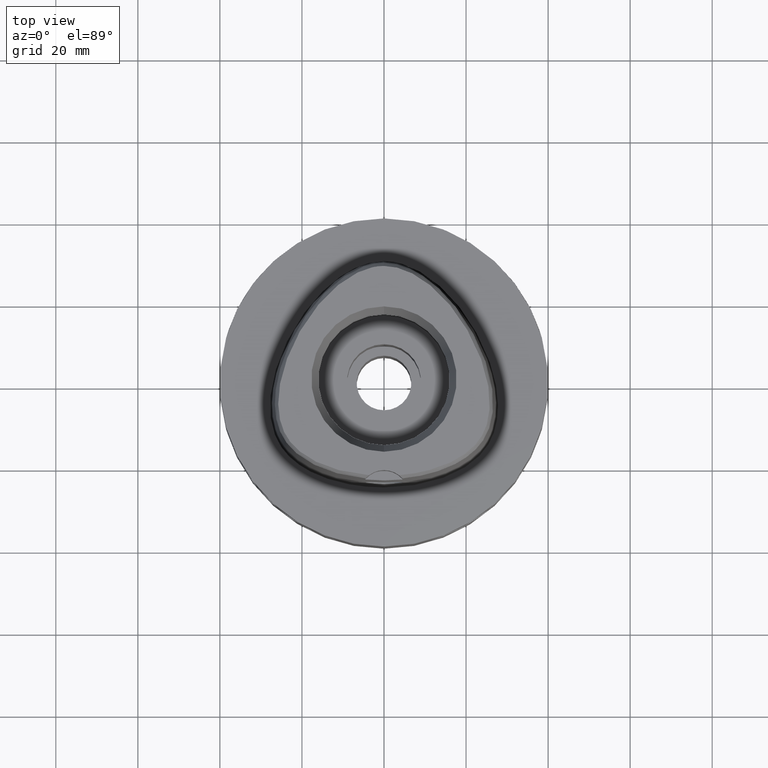
[diagram: clean part render]
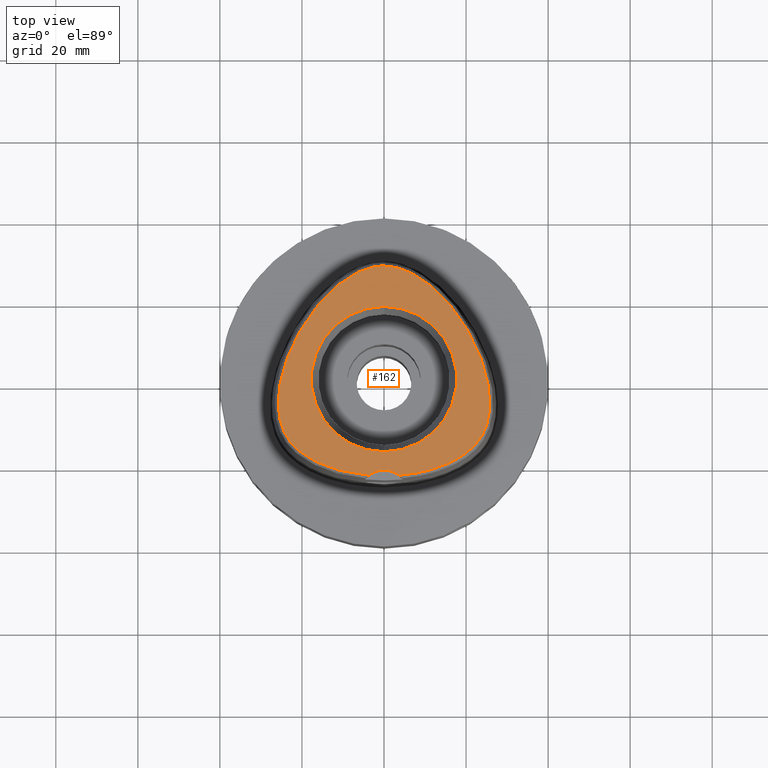
[diagram: same view with one face highlighted and labeled with its STEP entity id]
A machine part, top view. The second image highlights one B-rep face of the part: STEP entity #162.
In plain terms, the highlighted planar face has unit normal (0, 0, 1).
Its self-contained STEP definition (entity closure, byte-faithful):
#4 = CARTESIAN_POINT ( 'NONE',  ( 25.78811069501304942, -5.218135357747975434, 48.00000000000606803 ) ) ;
#32 = CARTESIAN_POINT ( 'NONE',  ( 23.81116373424266186, 4.548397580874504520, 48.00000000000783729 ) ) ;
#93 = CARTESIAN_POINT ( 'NONE',  ( -4.489954052492726611, 26.80204639255456200, 48.00000000000842704 ) ) ;
#122 = CARTESIAN_POINT ( 'NONE',  ( -24.34597371488892747, 2.947766319392898016, 48.00000000000918732 ) ) ;
#135 = CARTESIAN_POINT ( 'NONE',  ( 0.0000000000000000000, 0.0000000000000000000, 48.00000000000000000 ) ) ;
#141 = CARTESIAN_POINT ( 'NONE',  ( -22.45665628223481392, 7.877471279647881630, 48.00000000000441247 ) ) ;
#147 = CARTESIAN_POINT ( 'NONE',  ( 10.66892483387531598, -22.30459704282527511, 48.00000000000993339 ) ) ;
#162 = ADVANCED_FACE ( 'NONE', ( #3834, #1474 ), #3036, .T. ) ;
#171 = CARTESIAN_POINT ( 'NONE',  ( -23.26140416529554500, -14.77902311538010771, 48.00000000000509459 ) ) ;
#200 = CARTESIAN_POINT ( 'NONE',  ( -16.58720414441635072, 17.44590650687523592, 47.99999999999558753 ) ) ;
#237 = CARTESIAN_POINT ( 'NONE',  ( 0.0000000000000000000, 0.0000000000000000000, 48.00000000000000000 ) ) ;
#341 = VERTEX_POINT ( 'NONE', #2251 ) ;
#348 = CARTESIAN_POINT ( 'NONE',  ( 0.6937438505403579203, 27.57019898701109994, 48.00000000000366640 ) ) ;
#350 = DIRECTION ( 'NONE',  ( 0.0000000000000000000, 0.0000000000000000000, 1.000000000000000000 ) ) ;
#375 = CARTESIAN_POINT ( 'NONE',  ( 23.18188527997767068, 6.195157684106793461, 48.00000000000271427 ) ) ;
#422 = CARTESIAN_POINT ( 'NONE',  ( 25.74155027847749011, -7.352132003090066981, 48.00000000000758860 ) ) ;
#443 = CARTESIAN_POINT ( 'NONE',  ( 23.26225374360371845, -14.77782433121393701, 48.00000000000760281 ) ) ;
#487 = CARTESIAN_POINT ( 'NONE',  ( -6.203520479231302787, 26.11107304852786726, 48.00000000000571987 ) ) ;
#517 = CARTESIAN_POINT ( 'NONE',  ( -19.78446217835176668, 12.89029827906403369, 48.00000000000331113 ) ) ;
#540 = CARTESIAN_POINT ( 'NONE',  ( -25.64644810598788283, -8.319642749356461309, 48.00000000000968470 ) ) ;
#547 = CARTESIAN_POINT ( 'NONE',  ( 9.079666835763868349, -22.67647771863519424, 48.00000000001199396 ) ) ;
#561 = CARTESIAN_POINT ( 'NONE',  ( -18.76020591298052409, 14.48413071376458383, 48.00000000000543565 ) ) ;
#566 = VERTEX_POINT ( 'NONE', #3429 ) ;
#587 = CARTESIAN_POINT ( 'NONE',  ( -18.95547945645238741, -18.80500687501653090, 48.00000000000466116 ) ) ;
#614 = CARTESIAN_POINT ( 'NONE',  ( -0.6921675427512234968, 27.57027402749654499, 48.00000000000503064 ) ) ;
#703 = CARTESIAN_POINT ( 'NONE',  ( 25.64658655008214794, -8.318518488027693891, 48.00000000000591172 ) ) ;
#713 = CARTESIAN_POINT ( 'NONE',  ( -0.2321695341564309067, 27.58331912251146179, 48.00000000000255795 ) ) ;
#722 = CARTESIAN_POINT ( 'NONE',  ( 24.00708073425625599, -13.59389763843181420, 48.00000000000576250 ) ) ;
#738 = AXIS2_PLACEMENT_3D ( 'NONE', #135, #835, #886 ) ;
#752 = CARTESIAN_POINT ( 'NONE',  ( 2.897393261679963583, 27.25600202852406184, 48.00000000000409983 ) ) ;
#779 = CARTESIAN_POINT ( 'NONE',  ( 5.331982176208823532, 26.48833275828247835, 48.00000000000274980 ) ) ;
#801 = CARTESIAN_POINT ( 'NONE',  ( 12.14811716929451357, 22.13187320258422019, 47.99999999999896261 ) ) ;
#835 = DIRECTION ( 'NONE',  ( 0.0000000000000000000, 0.0000000000000000000, 1.000000000000000000 ) ) ;
#886 = DIRECTION ( 'NONE',  ( 0.0000000000000000000, 1.000000000000000000, 0.0000000000000000000 ) ) ;
#923 = CARTESIAN_POINT ( 'NONE',  ( -21.17991838301641749, -17.09989881138010048, 48.00000000000500933 ) ) ;
#952 = CARTESIAN_POINT ( 'NONE',  ( -24.78798701905811441, 1.406367702424668131, 48.00000000000323297 ) ) ;
#965 = ORIENTED_EDGE ( 'NONE', *, *, #4963, .F. ) ;
#975 = CARTESIAN_POINT ( 'NONE',  ( -17.07251346402492231, -19.90534499102769672, 48.00000000000147082 ) ) ;
#976 = B_SPLINE_CURVE_WITH_KNOTS ( 'NONE', 3,
 ( #1966, #1913, #348, #3440, #4299, #752, #3467, #5013, #779, #2331, #5043, #3892, #2356, #1531, #2379, #801, #4705, #1988, #4725, #1177, #1606, #3832, #4680, #3519, #2679, #4324, #375, #32, #1883, #1502, #1945, #3494, #3066, #3940, #4, #3145, #422, #703, #3171, #1125, #1223, #5070, #4240, #1555, #722, #2302, #443, #3590, #2087, #4039, #1345, #1316, #2016, #1631, #3617, #3992, #4376, #4397, #1727, #2875, #147, #547, #1249, #1294, #3257, #3966, #4445 ),
 .UNSPECIFIED., .F., .F.,
 ( 4, 1, 1, 1, 1, 1, 1, 1, 1, 1, 1, 1, 1, 1, 1, 1, 1, 1, 1, 1, 1, 1, 1, 1, 1, 1, 1, 1, 1, 1, 1, 1, 1, 1, 1, 1, 1, 1, 1, 1, 1, 1, 1, 1, 1, 1, 1, 1, 1, 1, 1, 1, 1, 1, 1, 1, 1, 1, 1, 1, 1, 1, 1, 1, 4 ),
 ( 0.0000000000000000000, 0.01585579672639991777, 0.03171159345210006197, 0.04756739017779998413, 0.06342318690360004840, 0.07927898362929997056, 0.09513478035499989272, 0.1109905770807000369, 0.1268463738063999591, 0.1427021705320999923, 0.1585579672578999455, 0.1744137639835999787, 0.1902695607093000119, 0.2061253574349999340, 0.2219811541607000782, 0.2378369508864000004, 0.2536927476120999225, 0.2695485443380000179, 0.2854043410636999401, 0.3012601377893999732, 0.3171159345151000064, 0.3329717312407999286, 0.3488275279665000728, 0.3646833246923000260, 0.3805391214179999482, 0.3963949181436999813, 0.4122507148694000145, 0.4281065115951000477, 0.4439623083207999699, 0.4598181050465000030, 0.4756739017723000673, 0.4915296984979999895, 0.5073854952237000226, 0.5232412919494000558, 0.5390970886750999780, 0.5549528854007999001, 0.5708086821265999644, 0.5866644788522999976, 0.6025202755780000308, 0.6183760723036999529, 0.6342318690293999861, 0.6500876657551999394, 0.6659434624808999725, 0.6817992592067000368, 0.6976550559323999590, 0.7135108526580999921, 0.7293666493838000253, 0.7452224461095000585, 0.7610782428351999807, 0.7769340395610000449, 0.7927898362866999671, 0.8086456330124000003, 0.8245014297380999224, 0.8403572264637999556, 0.8562130231894999888, 0.8720688199152000220, 0.8879246166409999752, 0.9037804133667199924, 0.9196362100924300176, 0.9354920068181400428, 0.9513478035438499569, 0.9672036002695799661, 0.9830593969952899913, 0.9989151937210170029, 1.000000000000000000 ),
 .UNSPECIFIED. ) ;
#999 = CARTESIAN_POINT ( 'NONE',  ( -13.53666233734578128, -21.43297585322376264, 48.00000000000152767 ) ) ;
#1050 = CARTESIAN_POINT ( 'NONE',  ( -1.406513445700645404, 27.50987728443240599, 48.00000000001251266 ) ) ;
#1063 = VERTEX_POINT ( 'NONE', #1784 ) ;
#1064 = CARTESIAN_POINT ( 'NONE',  ( 0.0000000000000000000, 0.0000000000000000000, 48.00000000000000000 ) ) ;
#1109 = CIRCLE ( 'NONE', #3980, 6.000000000000002665 ) ;
#1125 = CARTESIAN_POINT ( 'NONE',  ( 25.33687583872389126, -10.06999584063758668, 48.00000000000442668 ) ) ;
#1177 = CARTESIAN_POINT ( 'NONE',  ( 16.58774972841310102, 17.44522137221896330, 48.00000000000697753 ) ) ;
#1223 = CARTESIAN_POINT ( 'NONE',  ( 25.12949508357967332, -10.86427360166815603, 47.99999999999989342 ) ) ;
#1249 = CARTESIAN_POINT ( 'NONE',  ( 7.396182376302762762, -22.99483633013832673, 48.00000000000645883 ) ) ;
#1264 = DIRECTION ( 'NONE',  ( 0.0000000000000000000, 0.0000000000000000000, 1.000000000000000000 ) ) ;
#1290 = CARTESIAN_POINT ( 'NONE',  ( -2.895995683504349660, 27.25632069045063588, 48.00000000000500933 ) ) ;
#1294 = CARTESIAN_POINT ( 'NONE',  ( 5.628119991152977342, -23.25222728397455541, 48.00000000000321876 ) ) ;
#1309 = CARTESIAN_POINT ( 'NONE',  ( -5.621443921965807888, -23.25305008129186746, 48.00000000001158895 ) ) ;
#1316 = CARTESIAN_POINT ( 'NONE',  ( 20.51253914625041119, -17.67119446946212946, 47.99999999999969447 ) ) ;
#1324 = EDGE_LOOP ( 'NONE', ( #965, #3404, #2544 ) ) ;
#1338 = CARTESIAN_POINT ( 'NONE',  ( -7.390055773640864523, -22.99586658607940137, 48.00000000000366640 ) ) ;
#1345 = CARTESIAN_POINT ( 'NONE',  ( 21.18145661121623036, -17.09850743469334589, 47.99999999999829470 ) ) ;
#1368 = CARTESIAN_POINT ( 'NONE',  ( -15.47246034441344875, 18.77924032487164752, 48.00000000000600409 ) ) ;
#1386 = CARTESIAN_POINT ( 'NONE',  ( -14.35357212122946002, 20.00684525407174519, 47.99999999999990052 ) ) ;
#1416 = VERTEX_POINT ( 'NONE', #5032 ) ;
#1474 = FACE_BOUND ( 'NONE', #3150, .T. ) ;
#1502 = CARTESIAN_POINT ( 'NONE',  ( 24.78780591084375828, 1.407047860335388423, 48.00000000000070344 ) ) ;
#1531 = CARTESIAN_POINT ( 'NONE',  ( 10.03889926273921418, 23.82643791975515768, 48.00000000000915890 ) ) ;
#1555 = CARTESIAN_POINT ( 'NONE',  ( 24.32795549673378588, -12.97211154200293137, 48.00000000000951417 ) ) ;
#1606 = CARTESIAN_POINT ( 'NONE',  ( 17.68852893097899681, 16.00958332232139725, 48.00000000000285638 ) ) ;
#1613 = EDGE_CURVE ( 'NONE', #2856, #566, #1109, .T. ) ;
#1615 = ORIENTED_EDGE ( 'NONE', *, *, #4340, .F. ) ;
#1631 = CARTESIAN_POINT ( 'NONE',  ( 18.95779336837018292, -18.80349047535291618, 48.00000000000338218 ) ) ;
#1647 = EDGE_CURVE ( 'NONE', #566, #341, #3871, .T. ) ;
#1676 = CARTESIAN_POINT ( 'NONE',  ( -3.678923649486310676, 27.05630543830159240, 47.99999999999815969 ) ) ;
#1701 = CARTESIAN_POINT ( 'NONE',  ( -19.77143225161697160, -18.24138896763881590, 48.00000000000783729 ) ) ;
#1722 = CARTESIAN_POINT ( 'NONE',  ( -21.64189922317465786, 9.570126786844825872, 48.00000000000295586 ) ) ;
#1723 = AXIS2_PLACEMENT_3D ( 'NONE', #237, #2602, #4070 ) ;
#1727 = CARTESIAN_POINT ( 'NONE',  ( 13.54089058450629324, -21.43147460488541967, 48.00000000000918021 ) ) ;
#1750 = CARTESIAN_POINT ( 'NONE',  ( -25.78814000082077484, -5.219183132163657923, 48.00000000000435563 ) ) ;
#1777 = CARTESIAN_POINT ( 'NONE',  ( -12.14717624329316870, 22.13270362300422534, 48.00000000000713385 ) ) ;
#1784 = CARTESIAN_POINT ( 'NONE',  ( 0.0000000000000000000, 17.71487483155999954, 48.00000000000000000 ) ) ;
#1883 = CARTESIAN_POINT ( 'NONE',  ( 24.34579675531529830, 2.948329282943732199, 48.00000000001313083 ) ) ;
#1905 = ORIENTED_EDGE ( 'NONE', *, *, #2603, .F. ) ;
#1913 = CARTESIAN_POINT ( 'NONE',  ( 0.2325907962420791231, 27.58331912251588491, 48.00000000000326139 ) ) ;
#1945 = CARTESIAN_POINT ( 'NONE',  ( 25.14129527416941912, -0.06715740301629286035, 48.00000000000078160 ) ) ;
#1966 = CARTESIAN_POINT ( 'NONE',  ( -2.553408000957999972E-11, 27.58331912251000162, 48.00000000000000000 ) ) ;
#1988 = CARTESIAN_POINT ( 'NONE',  ( 14.35433142683577401, 20.00604447574545475, 48.00000000000303402 ) ) ;
#2008 = DIRECTION ( 'NONE',  ( 0.6087555377260667200, 0.7933578607966567109, 0.0000000000000000000 ) ) ;
#2016 = CARTESIAN_POINT ( 'NONE',  ( 19.77345709183110856, -18.23990985540091714, 47.99999999999798916 ) ) ;
#2052 = CARTESIAN_POINT ( 'NONE',  ( -11.07816725942211633, 23.03133635782418409, 48.00000000000149925 ) ) ;
#2077 = CARTESIAN_POINT ( 'NONE',  ( -3.652529789304999941, -23.43985019791999846, 48.00000000000000000 ) ) ;
#2087 = CARTESIAN_POINT ( 'NONE',  ( 22.33100613406347534, -15.94420923685188640, 48.00000000000496669 ) ) ;
#2102 = CARTESIAN_POINT ( 'NONE',  ( -25.72853642076912450, -4.045150056830411067, 48.00000000000228795 ) ) ;
#2127 = CARTESIAN_POINT ( 'NONE',  ( -15.99341638177358504, -20.43562447748537281, 48.00000000000518696 ) ) ;
#2158 = CARTESIAN_POINT ( 'NONE',  ( -7.110865803013911801, 25.66222324296222368, 48.00000000000311218 ) ) ;
#2233 = CARTESIAN_POINT ( 'NONE',  ( -2.139154069216735898, 27.40627708266852025, 48.00000000001116263 ) ) ;
#2251 = CARTESIAN_POINT ( 'NONE',  ( -2.553408000957999972E-11, 27.58331912251000162, 48.00000000000000000 ) ) ;
#2277 = DIRECTION ( 'NONE',  ( 1.000000000000000000, 0.0000000000000000000, 0.0000000000000000000 ) ) ;
#2302 = CARTESIAN_POINT ( 'NONE',  ( 23.65541542675131481, -14.18997106324462720, 48.00000000000638067 ) ) ;
#2331 = CARTESIAN_POINT ( 'NONE',  ( 6.204805495149636307, 26.11047595223686102, 48.00000000000787281 ) ) ;
#2356 = CARTESIAN_POINT ( 'NONE',  ( 9.029067995420147597, 24.52649931750154622, 48.00000000000409273 ) ) ;
#2379 = CARTESIAN_POINT ( 'NONE',  ( 11.07918744941303402, 23.03051546725269461, 48.00000000000348876 ) ) ;
#2470 = CARTESIAN_POINT ( 'NONE',  ( -25.79049889473385448, -6.320436011330392567, 47.99999999999899103 ) ) ;
#2491 = CARTESIAN_POINT ( 'NONE',  ( -25.12916461511161970, -10.86541650940670145, 48.00000000000216005 ) ) ;
#2515 = CARTESIAN_POINT ( 'NONE',  ( -23.18199738827244616, 6.194888181192450105, 48.00000000000196820 ) ) ;
#2539 = CARTESIAN_POINT ( 'NONE',  ( -22.82072892860657731, -15.36398915678147858, 48.00000000000691358 ) ) ;
#2544 = ORIENTED_EDGE ( 'NONE', *, *, #1613, .F. ) ;
#2602 = DIRECTION ( 'NONE',  ( 0.0000000000000000000, 0.0000000000000000000, 1.000000000000000000 ) ) ;
#2603 = EDGE_CURVE ( 'NONE', #1416, #1063, #4584, .T. ) ;
#2679 = CARTESIAN_POINT ( 'NONE',  ( 21.64191216433258091, 9.570096010441837109, 48.00000000001002576 ) ) ;
#2848 = CARTESIAN_POINT ( 'NONE',  ( -9.073991136863240214, -22.67767904108652743, 48.00000000000076028 ) ) ;
#2856 = VERTEX_POINT ( 'NONE', #2994 ) ;
#2867 = CARTESIAN_POINT ( 'NONE',  ( -18.05758772859816119, -19.36077714811569450, 48.00000000000325429 ) ) ;
#2875 = CARTESIAN_POINT ( 'NONE',  ( 12.15683615293744424, -21.88711351950797379, 48.00000000000004263 ) ) ;
#2895 = CARTESIAN_POINT ( 'NONE',  ( -12.15213727002596755, -21.88854758766736808, 48.00000000000310507 ) ) ;
#2922 = CARTESIAN_POINT ( 'NONE',  ( -9.027913645275431165, 24.52726119145381389, 48.00000000000054001 ) ) ;
#2947 = CARTESIAN_POINT ( 'NONE',  ( -25.74147105879054820, -7.353240448490033998, 48.00000000000628830 ) ) ;
#2994 = CARTESIAN_POINT ( 'NONE',  ( 3.652533226355999751, -23.43985283522000174, 48.00000000000000000 ) ) ;
#3036 = PLANE ( 'NONE',  #4049 ) ;
#3066 = CARTESIAN_POINT ( 'NONE',  ( 25.60516200878085513, -2.794192459352829339, 47.99999999999720046 ) ) ;
#3145 = CARTESIAN_POINT ( 'NONE',  ( 25.79052179444585491, -6.319355031379990884, 48.00000000001401190 ) ) ;
#3150 = EDGE_LOOP ( 'NONE', ( #1905, #1615 ) ) ;
#3171 = CARTESIAN_POINT ( 'NONE',  ( 25.51037851177078508, -9.222789616918198874, 48.00000000000687095 ) ) ;
#3231 = CARTESIAN_POINT ( 'NONE',  ( -25.51017841222404670, -9.223923978198921958, 48.00000000000375167 ) ) ;
#3257 = CARTESIAN_POINT ( 'NONE',  ( 4.358863301033805371, -23.38302754646075243, 48.00000000000788702 ) ) ;
#3275 = CARTESIAN_POINT ( 'NONE',  ( -20.74831938583926316, 11.24670202904923855, 48.00000000000205347 ) ) ;
#3301 = CARTESIAN_POINT ( 'NONE',  ( -25.60527911802436307, -2.795135548250288426, 48.00000000000176925 ) ) ;
#3324 = CARTESIAN_POINT ( 'NONE',  ( -14.81597509389803591, -20.94671102736843338, 48.00000000000084555 ) ) ;
#3404 = ORIENTED_EDGE ( 'NONE', *, *, #1647, .F. ) ;
#3429 = CARTESIAN_POINT ( 'NONE',  ( -3.652529789304999941, -23.43985019791999846, 48.00000000000000000 ) ) ;
#3440 = CARTESIAN_POINT ( 'NONE',  ( 1.407937999592834055, 27.50970958195682314, 48.00000000000714806 ) ) ;
#3467 = CARTESIAN_POINT ( 'NONE',  ( 3.680297990135803943, 27.05591354500016621, 48.00000000000530775 ) ) ;
#3494 = CARTESIAN_POINT ( 'NONE',  ( 25.41171405094057789, -1.468769615952757013, 48.00000000001043077 ) ) ;
#3519 = CARTESIAN_POINT ( 'NONE',  ( 20.74842146925798403, 11.24651447313819475, 48.00000000001126210 ) ) ;
#3590 = CARTESIAN_POINT ( 'NONE',  ( 22.82172265263874422, -15.36274108902250823, 48.00000000000525802 ) ) ;
#3611 = CARTESIAN_POINT ( 'NONE',  ( -5.330667503235257065, 26.48886318459678790, 48.00000000000473221 ) ) ;
#3617 = CARTESIAN_POINT ( 'NONE',  ( 18.06021793802527853, -19.35923481219683495, 47.99999999999962341 ) ) ;
#3639 = CARTESIAN_POINT ( 'NONE',  ( -25.14146662215196315, -0.06794041304908879364, 48.00000000000307665 ) ) ;
#3658 = CARTESIAN_POINT ( 'NONE',  ( -25.41186334295010951, -1.469639852780507017, 48.00000000001021760 ) ) ;
#3683 = CARTESIAN_POINT ( 'NONE',  ( -4.354443962178041971, -23.38344539136020472, 48.00000000000451195 ) ) ;
#3713 = CARTESIAN_POINT ( 'NONE',  ( -20.51077223929794258, -17.67263102127756724, 48.00000000000100897 ) ) ;
#3821 = CARTESIAN_POINT ( 'NONE',  ( -2.553408000957999972E-11, 27.58331912251000162, 48.00000000000000000 ) ) ;
#3832 = CARTESIAN_POINT ( 'NONE',  ( 18.76051936065471537, 14.48366014232692756, 48.00000000000634515 ) ) ;
#3834 = FACE_OUTER_BOUND ( 'NONE', #1324, .T. ) ;
#3871 = B_SPLINE_CURVE_WITH_KNOTS ( 'NONE', 3,
 ( #2077, #4895, #3683, #1309, #1338, #2848, #4793, #2895, #999, #3324, #2127, #975, #2867, #587, #1701, #3713, #923, #4101, #4033, #2539, #171, #4467, #4413, #4009, #4056, #4814, #2491, #4439, #3231, #540, #2947, #2470, #1750, #2102, #3301, #3658, #3639, #952, #122, #4488, #2515, #141, #1722, #3275, #517, #561, #4841, #200, #1368, #1386, #4077, #1777, #2052, #4872, #2922, #4513, #2158, #487, #3611, #93, #1676, #1290, #2233, #1050, #614, #713, #3821 ),
 .UNSPECIFIED., .F., .F.,
 ( 4, 1, 1, 1, 1, 1, 1, 1, 1, 1, 1, 1, 1, 1, 1, 1, 1, 1, 1, 1, 1, 1, 1, 1, 1, 1, 1, 1, 1, 1, 1, 1, 1, 1, 1, 1, 1, 1, 1, 1, 1, 1, 1, 1, 1, 1, 1, 1, 1, 1, 1, 1, 1, 1, 1, 1, 1, 1, 1, 1, 1, 1, 1, 1, 4 ),
 ( 0.0000000000000000000, 0.001025211071800091744, 0.01688195375320000746, 0.03273869643469995427, 0.04859543911610009204, 0.06445218179750000775, 0.08030892447889992347, 0.09616566716030006123, 0.1120224098416999770, 0.1278791525231999238, 0.1437358952045000304, 0.1595926378859000572, 0.1754493805672999729, 0.1913061232486999996, 0.2071628659301000264, 0.2230196086114999421, 0.2388763512929999999, 0.2547330939744000267, 0.2705898366558000534, 0.2864465793371999691, 0.3023033220184999648, 0.3181600646999001025, 0.3340168073814000493, 0.3498735500627999651, 0.3657302927441999918, 0.3815870354256000185, 0.3974437781070000453, 0.4133005207884000720, 0.4291572634697999877, 0.4450140061513000456, 0.4608707488326000412, 0.4767274915139999569, 0.4925842341953999837, 0.5084409768768000104, 0.5242977195582000371, 0.5401544622396999840, 0.5560112049211000107, 0.5718679476025000374, 0.5877246902838999532, 0.6035814329652000598, 0.6194381756466000866, 0.6352949183280000023, 0.6511516610095000601, 0.6670084036908999758, 0.6828651463723000026, 0.6987218890537000293, 0.7145786317350999450, 0.7304353744164999718, 0.7462921170980000296, 0.7621488597793000253, 0.7780056024607000520, 0.7938623451421000787, 0.8097190878234999944, 0.8255758305049000212, 0.8414325731862999369, 0.8572893158677999947, 0.8731460585492000215, 0.8890028012306000482, 0.9048595439119599959, 0.9207162865933600226, 0.9365730292747700414, 0.9524297719561699571, 0.9682865146375799759, 0.9841432573189800026, 1.000000000000000000 ),
 .UNSPECIFIED. ) ;
#3892 = CARTESIAN_POINT ( 'NONE',  ( 8.053467330374358468, 25.13580020532189252, 48.00000000000165556 ) ) ;
#3940 = CARTESIAN_POINT ( 'NONE',  ( 25.72845965679304214, -4.044145215521555592, 48.00000000001175948 ) ) ;
#3957 = CARTESIAN_POINT ( 'NONE',  ( 0.0000000000000000000, -28.19999999999999929, 48.00000000000000000 ) ) ;
#3966 = CARTESIAN_POINT ( 'NONE',  ( 3.695072017992969915, -23.43648746218681111, 48.00000000000639488 ) ) ;
#3980 = AXIS2_PLACEMENT_3D ( 'NONE', #3957, #1264, #2008 ) ;
#3992 = CARTESIAN_POINT ( 'NONE',  ( 17.07549476912559427, -19.90378693825460132, 48.00000000000544276 ) ) ;
#4009 = CARTESIAN_POINT ( 'NONE',  ( -24.32740975878667911, -12.97324844465319771, 48.00000000000177636 ) ) ;
#4033 = CARTESIAN_POINT ( 'NONE',  ( -22.32985285487828975, -15.94550431090508269, 48.00000000000733991 ) ) ;
#4039 = CARTESIAN_POINT ( 'NONE',  ( 21.78596494080604273, -16.52262878100053456, 47.99999999999742073 ) ) ;
#4049 = AXIS2_PLACEMENT_3D ( 'NONE', #1064, #350, #2277 ) ;
#4056 = CARTESIAN_POINT ( 'NONE',  ( -24.62272929601915550, -12.31262433038550164, 48.00000000000112976 ) ) ;
#4070 = DIRECTION ( 'NONE',  ( 0.0000000000000000000, -1.000000000000000000, 0.0000000000000000000 ) ) ;
#4077 = CARTESIAN_POINT ( 'NONE',  ( -13.24182048140635537, 21.12501160990115778, 47.99999999999875655 ) ) ;
#4101 = CARTESIAN_POINT ( 'NONE',  ( -21.78463111685727327, -16.52397191850903369, 48.00000000000356692 ) ) ;
#4240 = CARTESIAN_POINT ( 'NONE',  ( 24.62320007856940052, -12.31148373401587293, 48.00000000000372324 ) ) ;
#4299 = CARTESIAN_POINT ( 'NONE',  ( 2.140583849880448586, 27.40603513869700691, 48.00000000000483169 ) ) ;
#4324 = CARTESIAN_POINT ( 'NONE',  ( 22.45659887780217190, 7.877591736060332472, 48.00000000000144951 ) ) ;
#4340 = EDGE_CURVE ( 'NONE', #1063, #1416, #5000, .T. ) ;
#4376 = CARTESIAN_POINT ( 'NONE',  ( 15.99678577414156955, -20.43406366493195137, 48.00000000000686384 ) ) ;
#4397 = CARTESIAN_POINT ( 'NONE',  ( 14.81975810291315909, -20.94516920635098245, 48.00000000000698464 ) ) ;
#4413 = CARTESIAN_POINT ( 'NONE',  ( -24.00645943640444102, -13.59502449744075925, 48.00000000001068656 ) ) ;
#4439 = CARTESIAN_POINT ( 'NONE',  ( -25.33661149944236968, -10.07113708571465338, 48.00000000000640910 ) ) ;
#4445 = CARTESIAN_POINT ( 'NONE',  ( 3.652533226355999751, -23.43985283522000174, 48.00000000000000000 ) ) ;
#4467 = CARTESIAN_POINT ( 'NONE',  ( -23.65469623604898430, -14.19111717468716094, 48.00000000000210321 ) ) ;
#4488 = CARTESIAN_POINT ( 'NONE',  ( -23.81131852265728455, 4.547972304023801371, 48.00000000000343903 ) ) ;
#4513 = CARTESIAN_POINT ( 'NONE',  ( -8.052265342577985763, 25.13651235630058878, 48.00000000000150635 ) ) ;
#4584 = CIRCLE ( 'NONE', #1723, 17.71487483155999954 ) ;
#4680 = CARTESIAN_POINT ( 'NONE',  ( 19.78466709479900132, 12.88995995782129533, 48.00000000000297717 ) ) ;
#4705 = CARTESIAN_POINT ( 'NONE',  ( 13.24267791555834428, 21.12418368643712796, 47.99999999999904077 ) ) ;
#4725 = CARTESIAN_POINT ( 'NONE',  ( 15.47311546589848597, 18.77848662925454093, 48.00000000000593303 ) ) ;
#4793 = CARTESIAN_POINT ( 'NONE',  ( -10.66374418707911786, -22.30593187527849963, 48.00000000000477485 ) ) ;
#4814 = CARTESIAN_POINT ( 'NONE',  ( -24.89056289417494838, -11.61105474084072142, 48.00000000000490985 ) ) ;
#4841 = CARTESIAN_POINT ( 'NONE',  ( -17.68810259327923262, 16.01016819644818767, 48.00000000000748202 ) ) ;
#4872 = CARTESIAN_POINT ( 'NONE',  ( -10.03780479163819450, 23.82723751530631162, 48.00000000001065814 ) ) ;
#4895 = CARTESIAN_POINT ( 'NONE',  ( -3.692743038414318946, -23.43666978756795416, 48.00000000000162714 ) ) ;
#4963 = EDGE_CURVE ( 'NONE', #341, #2856, #976, .T. ) ;
#5000 = CIRCLE ( 'NONE', #738, 17.71487483155999954 ) ;
#5013 = CARTESIAN_POINT ( 'NONE',  ( 4.491298471527485958, 26.80158405531406274, 48.00000000000233769 ) ) ;
#5032 = CARTESIAN_POINT ( 'NONE',  ( 0.0000000000000000000, -17.71487483155999954, 48.00000000000000000 ) ) ;
#5043 = CARTESIAN_POINT ( 'NONE',  ( 7.112111422625326362, 25.66156608519674265, 48.00000000000414957 ) ) ;
#5070 = CARTESIAN_POINT ( 'NONE',  ( 24.89096213678729796, -11.60991207239850453, 48.00000000000208900 ) ) ;